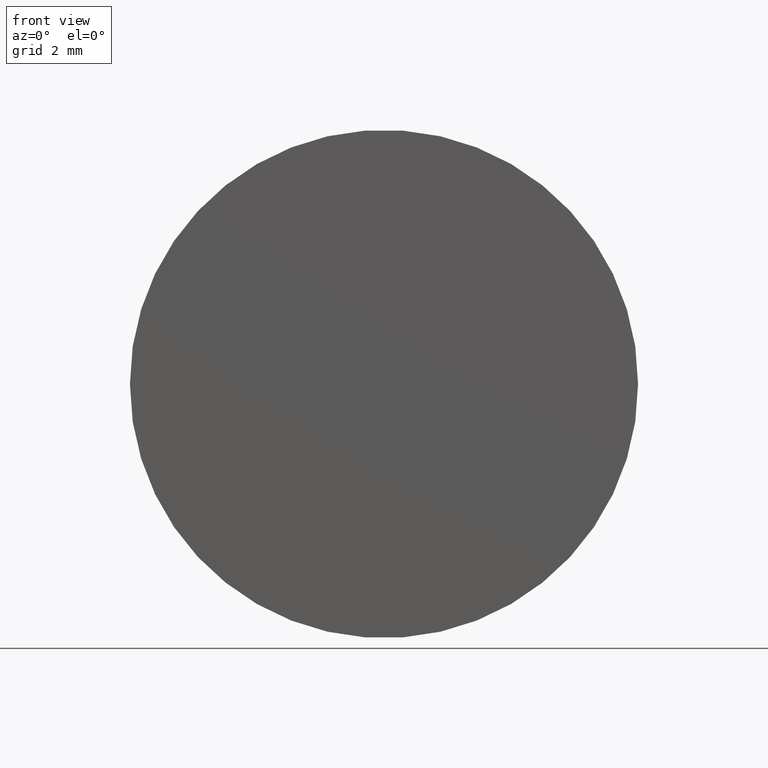
[diagram: clean part render]
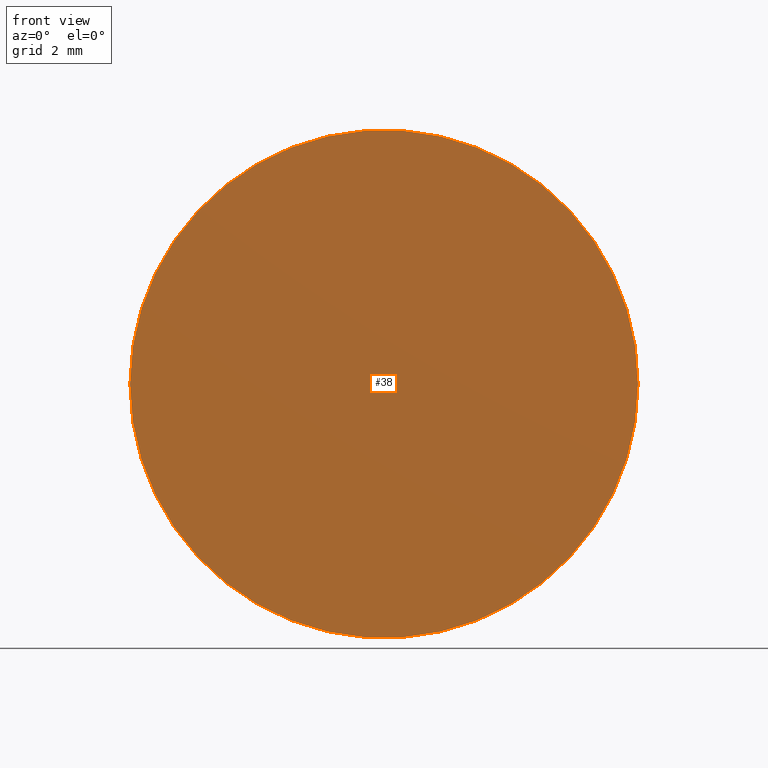
[diagram: same view with one face highlighted and labeled with its STEP entity id]
A machine part, front view. The second image highlights one B-rep face of the part: STEP entity #38.
In plain terms, the highlighted planar face has unit normal (0, -1, 0).
Its self-contained STEP definition (entity closure, byte-faithful):
#19=FACE_OUTER_BOUND('',#23,.T.);
#23=EDGE_LOOP('',(#33));
#25=CIRCLE('',#44,5.4);
#27=VERTEX_POINT('',#63);
#29=EDGE_CURVE('',#27,#27,#25,.T.);
#33=ORIENTED_EDGE('',*,*,#29,.T.);
#35=PLANE('',#45);
#38=ADVANCED_FACE('',(#19),#35,.T.);
#44=AXIS2_PLACEMENT_3D('',#64,#54,#55);
#45=AXIS2_PLACEMENT_3D('',#65,#56,#57);
#54=DIRECTION('center_axis',(3.06161699786838E-16,-1.,0.));
#55=DIRECTION('ref_axis',(1.,3.06161699786838E-16,0.));
#56=DIRECTION('center_axis',(3.06161699786838E-16,-1.,0.));
#57=DIRECTION('ref_axis',(0.,0.,-1.));
#63=CARTESIAN_POINT('',(5.4,0.,0.));
#64=CARTESIAN_POINT('Origin',(5.82734075349082E-31,-1.65327317884893E-15,
0.));
#65=CARTESIAN_POINT('Origin',(0.,0.,0.));